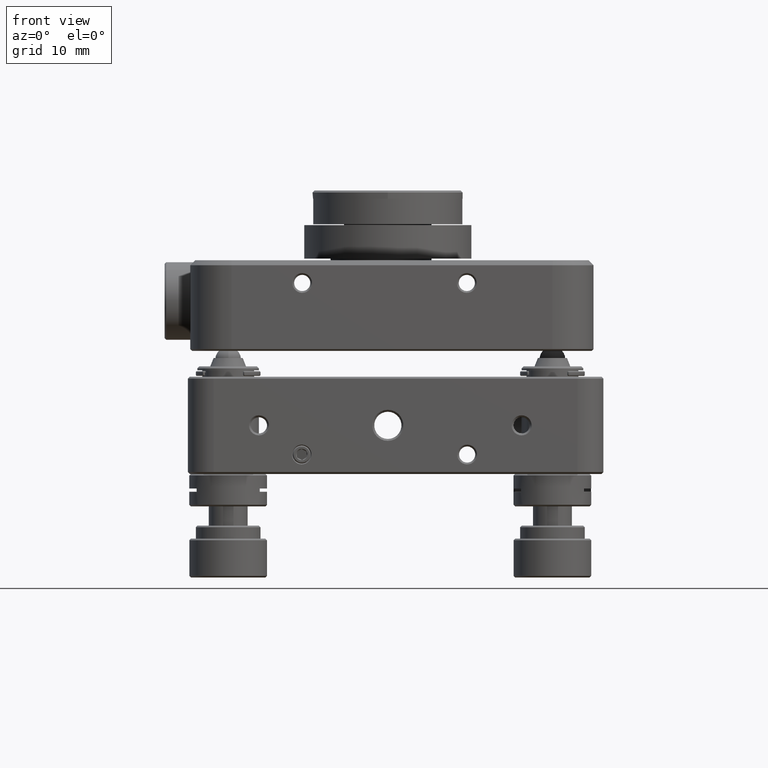
[diagram: clean part render]
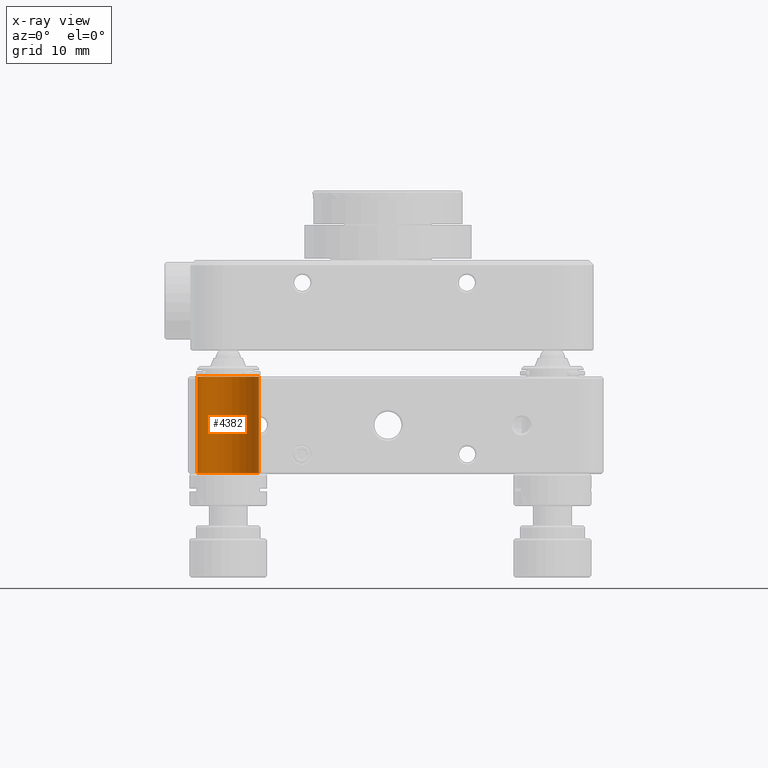
[diagram: x-ray — body ghosted, one internal face saturated and labeled with its STEP entity id]
A machine part, front view, then the same camera in x-ray: the body is ghosted and one INTERNAL B-rep face — a face not visible from any outside direction — is saturated and labeled: STEP entity #4382.
In plain terms, the highlighted cylindrical surface (edge-blend (fillet) strip) has radius 4.75 mm, axis along (-0, -0, 1).
Its self-contained STEP definition (entity closure, byte-faithful):
#603 = VECTOR ( 'NONE', #16362, 1000.000000000000000 ) ;
#625 = DIRECTION ( 'NONE',  ( 1.000000000000000000, 7.304098846218133681E-16, 0.0000000000000000000 ) ) ;
#707 = DIRECTION ( 'NONE',  ( -1.000000000000000000, -7.304098846218133681E-16, 0.0000000000000000000 ) ) ;
#1157 = CARTESIAN_POINT ( 'NONE',  ( -17.34799999999999542, -27.93999999999999773, -9.524999999999995026 ) ) ;
#1988 = EDGE_CURVE ( 'NONE', #4466, #8942, #14925, .T. ) ;
#2704 = CIRCLE ( 'NONE', #16817, 4.750000000000000888 ) ;
#2906 = CARTESIAN_POINT ( 'NONE',  ( -17.34799999999999542, -27.93999999999999773, -46.49556274847713411 ) ) ;
#3220 = CIRCLE ( 'NONE', #9930, 4.750000000000000888 ) ;
#4382 = ADVANCED_FACE ( 'NONE', ( #11918 ), #17116, .T. ) ;
#4454 = LINE ( 'NONE', #2906, #13766 ) ;
#4466 = VERTEX_POINT ( 'NONE', #17653 ) ;
#5913 = CARTESIAN_POINT ( 'NONE',  ( -22.09799999999999542, -27.94000000000000128, -24.42499999999999716 ) ) ;
#5970 = EDGE_CURVE ( 'NONE', #18752, #4466, #2704, .T. ) ;
#6540 = ORIENTED_EDGE ( 'NONE', *, *, #1988, .T. ) ;
#6989 = CARTESIAN_POINT ( 'NONE',  ( -17.34799999999999542, -27.93999999999999773, -24.42499999999999716 ) ) ;
#8942 = VERTEX_POINT ( 'NONE', #17532 ) ;
#9930 = AXIS2_PLACEMENT_3D ( 'NONE', #14013, #17438, #625 ) ;
#9947 = CARTESIAN_POINT ( 'NONE',  ( -26.84799999999999542, -27.94000000000000128, -46.49556274847713411 ) ) ;
#11918 = FACE_OUTER_BOUND ( 'NONE', #12962, .T. ) ;
#12254 = CARTESIAN_POINT ( 'NONE',  ( -22.09799999999999542, -27.94000000000000128, -46.49556274847713411 ) ) ;
#12962 = EDGE_LOOP ( 'NONE', ( #15069, #6540, #15522, #13054 ) ) ;
#13054 = ORIENTED_EDGE ( 'NONE', *, *, #16032, .F. ) ;
#13766 = VECTOR ( 'NONE', #20317, 1000.000000000000000 ) ;
#14013 = CARTESIAN_POINT ( 'NONE',  ( -22.09799999999999542, -27.94000000000000128, -9.524999999999995026 ) ) ;
#14925 = LINE ( 'NONE', #9947, #603 ) ;
#15069 = ORIENTED_EDGE ( 'NONE', *, *, #5970, .T. ) ;
#15522 = ORIENTED_EDGE ( 'NONE', *, *, #18197, .T. ) ;
#15760 = AXIS2_PLACEMENT_3D ( 'NONE', #12254, #21838, #20187 ) ;
#16032 = EDGE_CURVE ( 'NONE', #18752, #20992, #4454, .T. ) ;
#16362 = DIRECTION ( 'NONE',  ( -4.930380657631323784E-32, -1.203099312152368244E-17, 1.000000000000000000 ) ) ;
#16817 = AXIS2_PLACEMENT_3D ( 'NONE', #5913, #17522, #707 ) ;
#17116 = CYLINDRICAL_SURFACE ( 'NONE', #15760, 4.750000000000000888 ) ;
#17438 = DIRECTION ( 'NONE',  ( 4.930380657631323784E-32, 1.203099312152368244E-17, -1.000000000000000000 ) ) ;
#17522 = DIRECTION ( 'NONE',  ( -4.930380657631323784E-32, -1.203099312152368244E-17, 1.000000000000000000 ) ) ;
#17532 = CARTESIAN_POINT ( 'NONE',  ( -26.84799999999999542, -27.94000000000000128, -9.524999999999995026 ) ) ;
#17653 = CARTESIAN_POINT ( 'NONE',  ( -26.84799999999999542, -27.94000000000000128, -24.42499999999999716 ) ) ;
#18197 = EDGE_CURVE ( 'NONE', #8942, #20992, #3220, .T. ) ;
#18752 = VERTEX_POINT ( 'NONE', #6989 ) ;
#20187 = DIRECTION ( 'NONE',  ( 1.000000000000000000, 7.304098846218133681E-16, 0.0000000000000000000 ) ) ;
#20317 = DIRECTION ( 'NONE',  ( -4.930380657631323784E-32, -1.203099312152368244E-17, 1.000000000000000000 ) ) ;
#20992 = VERTEX_POINT ( 'NONE', #1157 ) ;
#21838 = DIRECTION ( 'NONE',  ( -4.930380657631323784E-32, -1.203099312152368244E-17, 1.000000000000000000 ) ) ;